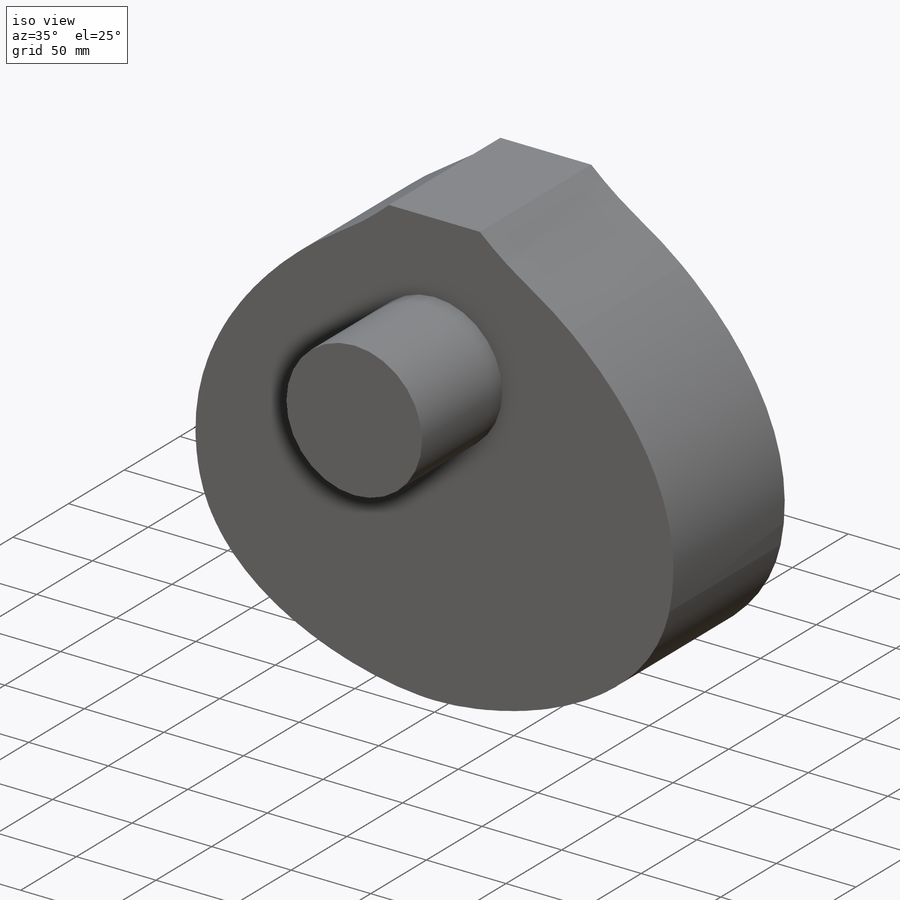
[diagram: iso view]
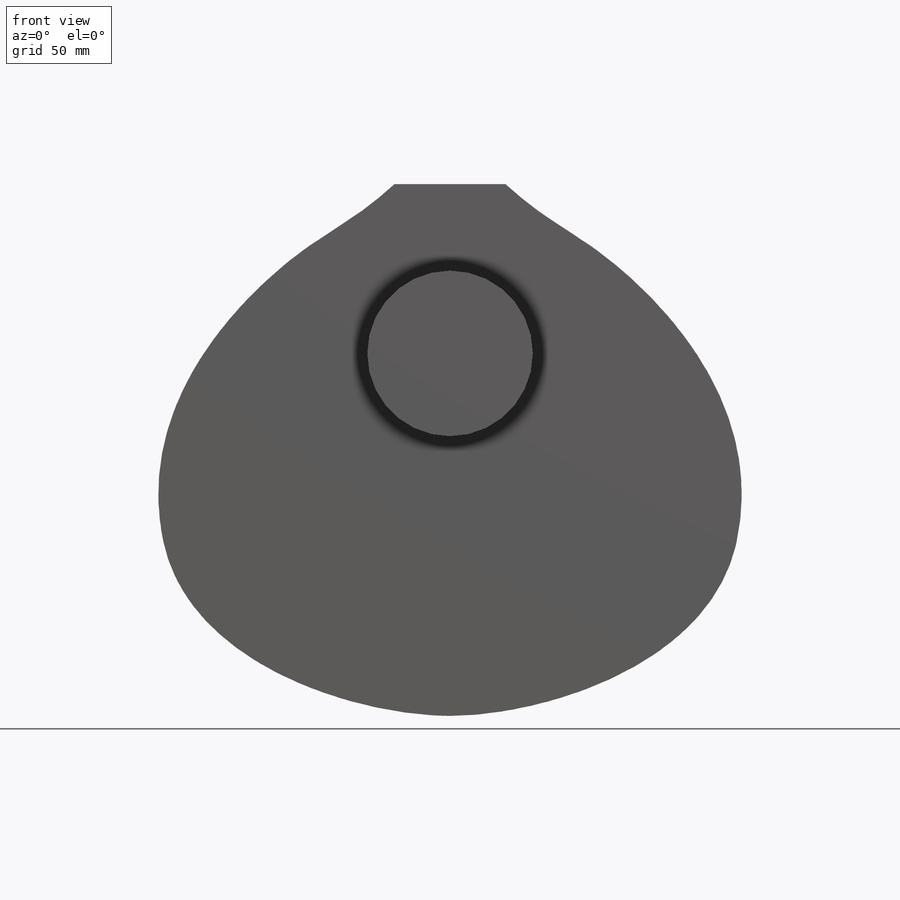
[diagram: front view]
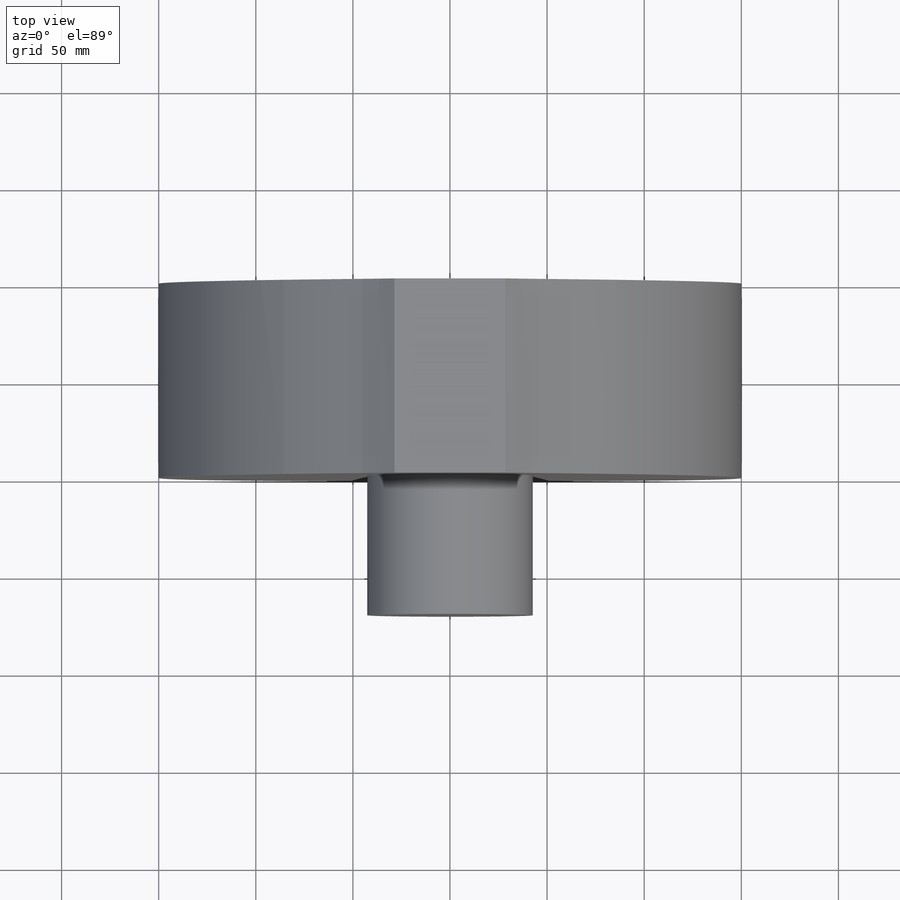
[diagram: top view]
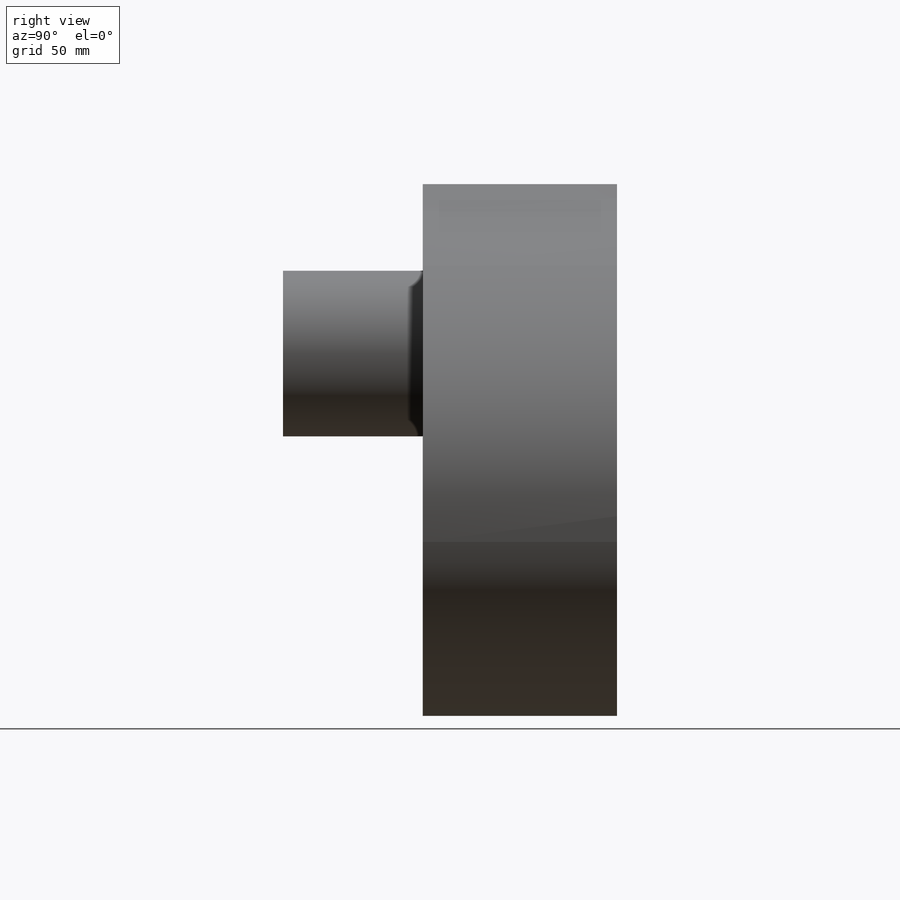
[diagram: right view]
SOLIDWORKS PART (.sldprt)
format: sldprt  version: not decoded by parser v0  size: 252,928 bytes
history: native  units: mm
features: sketch x7, extrude x6, plane x3, material x1 + 1 further entry (+11 scaffold rows collapsed)
feature tree (29):
  scaffold x11  (default folders/planes/origin — collapsed)
  material  "Material <sin especificar>"
  "Anotaciones"  RD1=100mm RD2=100mm RD3=100mm RD4=100mm RD5=100mm RD6=100mm RD7=100mm RD8=100mm
  plane  "Alzado"
  plane  "Planta"
  plane  "Vista lateral"
  sketch  "Croquis1"  dims[D1=~273.832791mm]
  sketch  "Croquis3"
  extrude  "Saliente-Extruir1"  Depth=100mm
  extrude  "Saliente-Extruir2"  Depth=100mm
  sketch  "Croquis8"  dims[D1=15.0mm D2=15.0mm]
  sketch  "Croquis10"  dims[D1=57.2mm]
  sketch  "Croquis14"
  extrude  "Superficie-Plano10"  [1 undecoded]
  extrude  "Superficie-Plano2"  [1 undecoded]
  sketch  "Croquis13"
  extrude  "Saliente-Extruir3"  Depth=72mm
  sketch  "Croquis15"
  extrude  "Superficie-Plano11"  [1 undecoded]
decode coverage: 6 of 13 modeling features carry decoded parameters; 1 rows unclassified (native names shown)
note: ~ marks probable driven/reference dimensions
note: 3 parameter values undecoded
summary: no parameter record found for 3 features
note: suppression state not decoded; provenance and decode notes live in map.json
